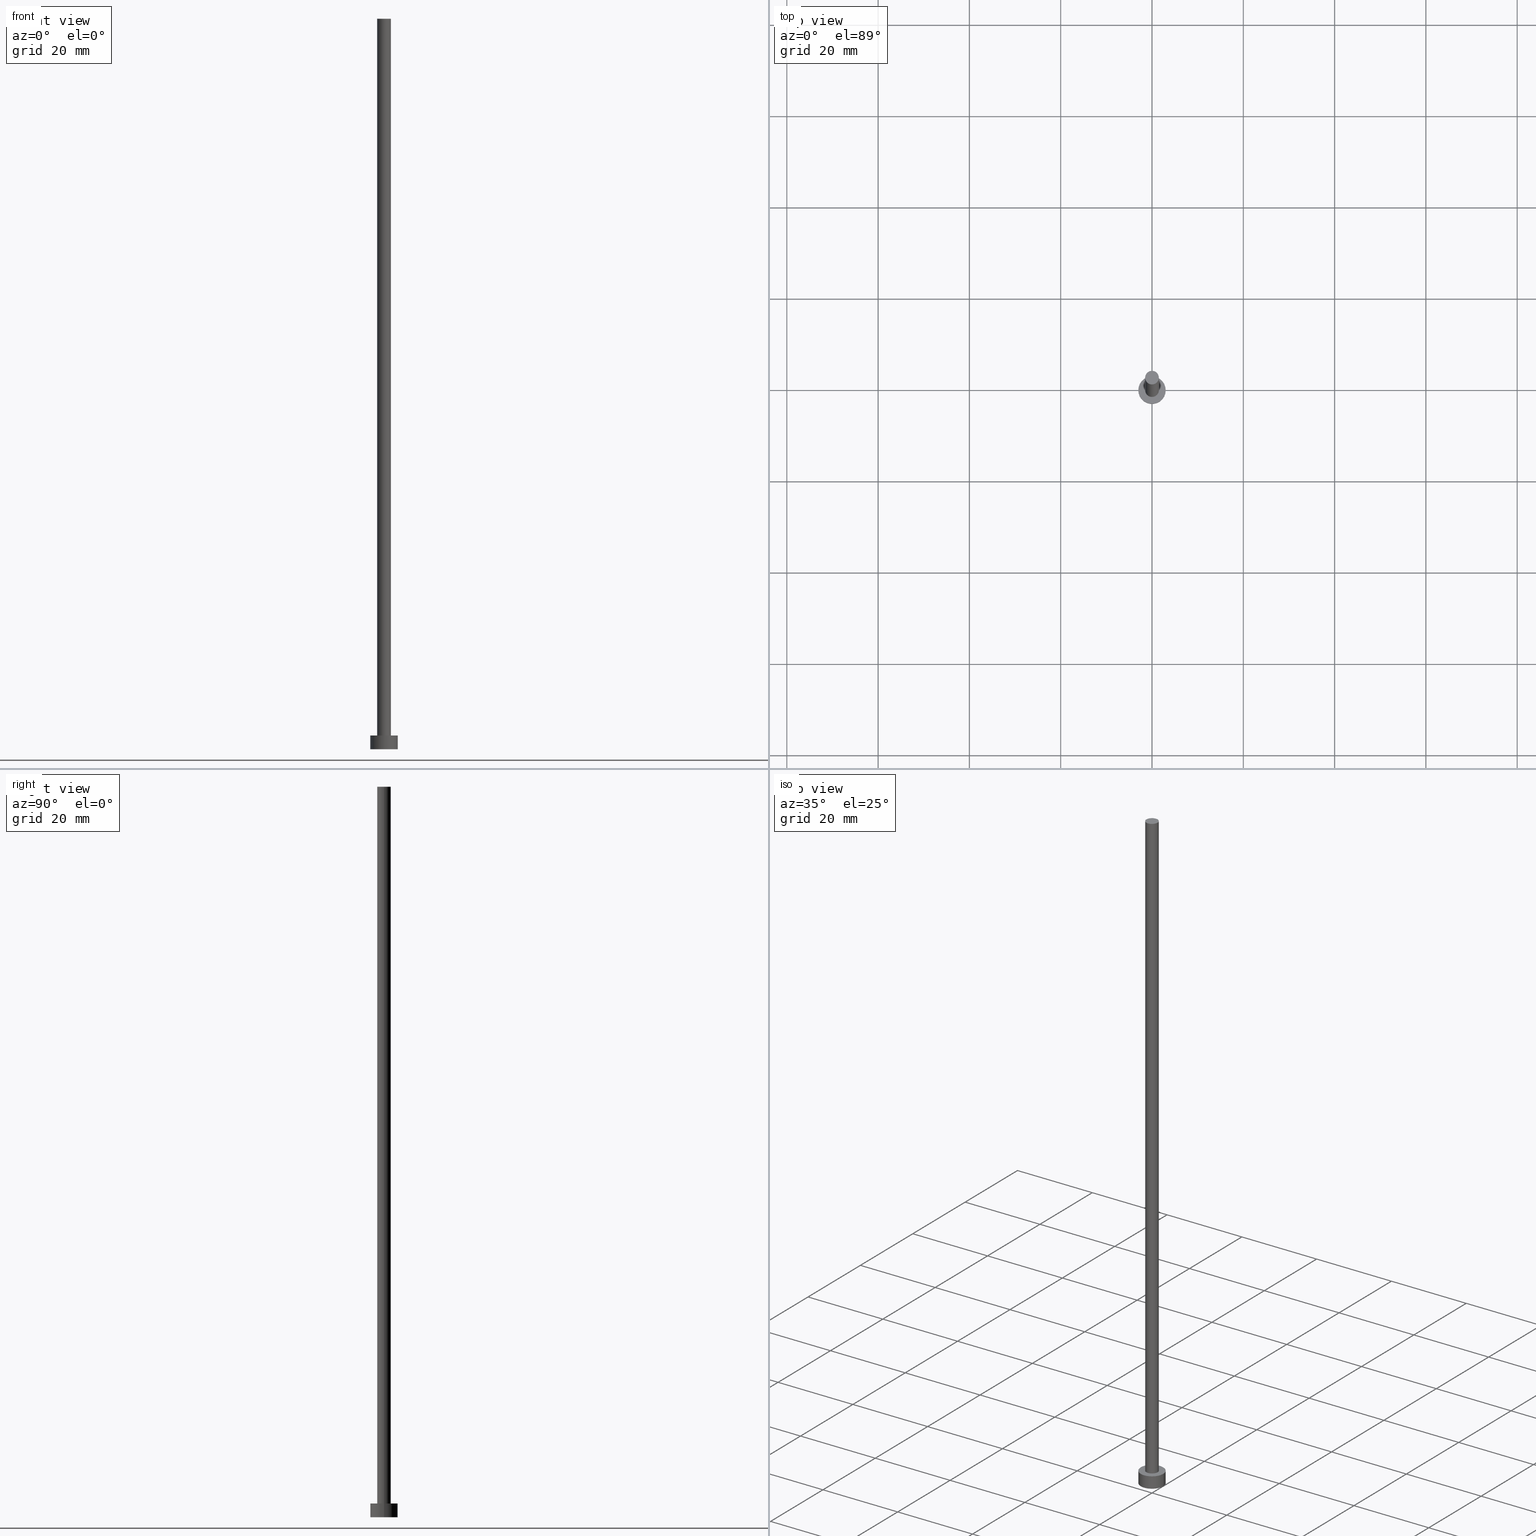
[diagram: canonical four-view strip — front | top / right | iso, engineering-drawing reading convention]
A machine part, canonical four-view strip (front | top / right | iso — engineering-drawing reading convention). The complete STEP part file that produces these views, byte-faithful:
ISO-10303-21;
HEADER;
FILE_DESCRIPTION (( 'STEP AP203' ),
    '1' );
FILE_NAME ('f758.STEP',
    '2023-02-13T14:27:02',
    ( '' ),
    ( '' ),
    'SwSTEP 2.0',
    'SolidWorks 2019',
    '' );
FILE_SCHEMA (( 'CONFIG_CONTROL_DESIGN' ));
ENDSEC;

DATA;
#1 = AXIS2_PLACEMENT_3D ( 'NONE', #147, #209, #152 ) ;
#2 = DIRECTION ( 'NONE',  ( -0.000000000000000000, -0.000000000000000000, -1.000000000000000000 ) ) ;
#3 = LOCAL_TIME ( 15, 27, 2.000000000000000000, #36 ) ;
#4 = CC_DESIGN_APPROVAL ( #140, ( #133 ) ) ;
#5 = EDGE_LOOP ( 'NONE', ( #104, #210, #172, #67 ) ) ;
#6 = APPROVAL ( #83, 'NEUR�EN�' ) ;
#7 = ORIENTED_EDGE ( 'NONE', *, *, #19, .T. ) ;
#8 = ORIENTED_EDGE ( 'NONE', *, *, #232, .T. ) ;
#9 = LOCAL_TIME ( 15, 27, 2.000000000000000000, #163 ) ;
#10 = PRODUCT_DEFINITION_SHAPE ( 'NONE', 'NONE',  #133 ) ;
#11 = DIRECTION ( 'NONE',  ( 1.000000000000000000, 0.000000000000000000, -0.000000000000000000 ) ) ;
#12 = CARTESIAN_POINT ( 'NONE',  ( 0.000000000000000000, 0.000000000000000000, 0.000000000000000000 ) ) ;
#13 = SHAPE_DEFINITION_REPRESENTATION ( #10, #237 ) ;
#14 = APPROVAL_DATE_TIME ( #199, #6 ) ;
#15 = PERSON_AND_ORGANIZATION ( #20, #212 ) ;
#16 = EDGE_LOOP ( 'NONE', ( #154, #65, #42, #213 ) ) ;
#17 = DIRECTION ( 'NONE',  ( 1.000000000000000000, 0.000000000000000000, 0.000000000000000000 ) ) ;
#18 = DIRECTION ( 'NONE',  ( -1.000000000000000000, 0.000000000000000000, 0.000000000000000000 ) ) ;
#19 = EDGE_CURVE ( 'NONE', #100, #214, #215, .T. ) ;
#20 = PERSON ( 'NEUR�EN�', 'NEUR�EN�', 'NEUR�EN�', ('NEUR�EN�'), ('NEUR�EN�'), ('NEUR�EN�') ) ;
#21 = AXIS2_PLACEMENT_3D ( 'NONE', #247, #2, #18 ) ;
#22 = CC_DESIGN_PERSON_AND_ORGANIZATION_ASSIGNMENT ( #32, #253, ( #143 ) ) ;
#23 = AXIS2_PLACEMENT_3D ( 'NONE', #224, #97, #128 ) ;
#24 = LINE ( 'NONE', #244, #25 ) ;
#25 = VECTOR ( 'NONE', #72, 1000.000000000000000 ) ;
#26 = MANIFOLD_SOLID_BREP ( 'P�idat vysunut�m3', #204 ) ;
#27 = FACE_BOUND ( 'NONE', #206, .T. ) ;
#28 = EDGE_CURVE ( 'NONE', #93, #136, #211, .T. ) ;
#29 = CIRCLE ( 'NONE', #126, 1.500000000000000222 ) ;
#30 = DIRECTION ( 'NONE',  ( 0.000000000000000000, 0.000000000000000000, 1.000000000000000000 ) ) ;
#31 = DIRECTION ( 'NONE',  ( 1.000000000000000000, 0.000000000000000000, 0.000000000000000000 ) ) ;
#32 = PERSON_AND_ORGANIZATION ( #20, #212 ) ;
#33 = CIRCLE ( 'NONE', #158, 3.000000000000000444 ) ;
#34 = DESIGN_CONTEXT ( 'detailed design', #138, 'design' ) ;
#35 = DATE_AND_TIME ( #149, #103 ) ;
#36 = COORDINATED_UNIVERSAL_TIME_OFFSET ( 1, 0, .AHEAD. ) ;
#37 = CC_DESIGN_PERSON_AND_ORGANIZATION_ASSIGNMENT ( #59, #57, ( #125 ) ) ;
#38 = CARTESIAN_POINT ( 'NONE',  ( 3.000000000000000444, 3.673940397442060361E-16, 0.000000000000000000 ) ) ;
#39 = DATE_AND_TIME ( #150, #45 ) ;
#40 = APPLICATION_PROTOCOL_DEFINITION ( 'international standard', 'config_control_design', 1994, #50 ) ;
#41 = FACE_OUTER_BOUND ( 'NONE', #5, .T. ) ;
#42 = ORIENTED_EDGE ( 'NONE', *, *, #191, .T. ) ;
#43 = LINE ( 'NONE', #54, #119 ) ;
#44 = DIRECTION ( 'NONE',  ( -0.000000000000000000, -0.000000000000000000, -1.000000000000000000 ) ) ;
#45 = LOCAL_TIME ( 15, 27, 2.000000000000000000, #95 ) ;
#46 = ORIENTED_EDGE ( 'NONE', *, *, #232, .F. ) ;
#47 = CARTESIAN_POINT ( 'NONE',  ( 0.000000000000000000, 0.000000000000000000, 3.000000000000000000 ) ) ;
#48 = EDGE_LOOP ( 'NONE', ( #62, #170 ) ) ;
#49 = FACE_OUTER_BOUND ( 'NONE', #235, .T. ) ;
#50 = APPLICATION_CONTEXT ( 'configuration controlled 3d designs of mechanical parts and assemblies' ) ;
#51 = CARTESIAN_POINT ( 'NONE',  ( 0.000000000000000000, 0.000000000000000000, 3.000000000000000000 ) ) ;
#52 = PLANE ( 'NONE',  #203 ) ;
#53 = AXIS2_PLACEMENT_3D ( 'NONE', #252, #94, #226 ) ;
#54 = CARTESIAN_POINT ( 'NONE',  ( -3.000000000000000444, 0.000000000000000000, 3.000000000000000000 ) ) ;
#55 = CALENDAR_DATE ( 2023, 13, 2 ) ;
#56 = AXIS2_PLACEMENT_3D ( 'NONE', #117, #166, #79 ) ;
#57 = PERSON_AND_ORGANIZATION_ROLE ( 'design_owner' ) ;
#58 = CALENDAR_DATE ( 2023, 13, 2 ) ;
#59 = PERSON_AND_ORGANIZATION ( #20, #212 ) ;
#60 = LINE ( 'NONE', #64, #141 ) ;
#61 = DATE_TIME_ROLE ( 'creation_date' ) ;
#62 = ORIENTED_EDGE ( 'NONE', *, *, #207, .T. ) ;
#63 = APPROVAL_STATUS ( 'not_yet_approved' ) ;
#64 = CARTESIAN_POINT ( 'NONE',  ( 3.000000000000000444, 3.673940397442060361E-16, 3.000000000000000000 ) ) ;
#65 = ORIENTED_EDGE ( 'NONE', *, *, #156, .T. ) ;
#66 = EDGE_CURVE ( 'NONE', #93, #214, #24, .T. ) ;
#67 = ORIENTED_EDGE ( 'NONE', *, *, #112, .T. ) ;
#68 = EDGE_LOOP ( 'NONE', ( #46, #241, #7, #85 ) ) ;
#69 = EDGE_CURVE ( 'NONE', #136, #100, #144, .T. ) ;
#70 = CARTESIAN_POINT ( 'NONE',  ( 1.500000000000000222, 1.836970198721030181E-16, 3.000000000000000000 ) ) ;
#71 = ORIENTED_EDGE ( 'NONE', *, *, #207, .F. ) ;
#72 = DIRECTION ( 'NONE',  ( -0.000000000000000000, -0.000000000000000000, -1.000000000000000000 ) ) ;
#73 = APPROVAL_DATE_TIME ( #91, #140 ) ;
#74 =( NAMED_UNIT ( * ) PLANE_ANGLE_UNIT ( ) SI_UNIT ( $, .RADIAN. ) );
#75 = ADVANCED_FACE ( 'NONE', ( #49 ), #145, .T. ) ;
#76 = DIRECTION ( 'NONE',  ( 1.000000000000000000, 0.000000000000000000, -0.000000000000000000 ) ) ;
#77 = CIRCLE ( 'NONE', #181, 3.000000000000000444 ) ;
#78 = DIRECTION ( 'NONE',  ( 0.000000000000000000, 0.000000000000000000, 1.000000000000000000 ) ) ;
#79 = DIRECTION ( 'NONE',  ( 1.000000000000000000, 0.000000000000000000, 0.000000000000000000 ) ) ;
#80 = CARTESIAN_POINT ( 'NONE',  ( 0.000000000000000000, 0.000000000000000000, 0.000000000000000000 ) ) ;
#81 = ADVANCED_FACE ( 'NONE', ( #105 ), #155, .T. ) ;
#82 = DIRECTION ( 'NONE',  ( 0.000000000000000000, 0.000000000000000000, 1.000000000000000000 ) ) ;
#83 = APPROVAL_STATUS ( 'not_yet_approved' ) ;
#84 = CARTESIAN_POINT ( 'NONE',  ( 1.500000000000000222, 1.836970198721030181E-16, 160.0000000000000000 ) ) ;
#85 = ORIENTED_EDGE ( 'NONE', *, *, #66, .F. ) ;
#86 = CIRCLE ( 'NONE', #217, 3.000000000000000444 ) ;
#87 = CARTESIAN_POINT ( 'NONE',  ( -1.500000000000000222, 0.000000000000000000, 3.000000000000000000 ) ) ;
#88 = ADVANCED_FACE ( 'NONE', ( #27, #146 ), #52, .T. ) ;
#89 = ORIENTED_EDGE ( 'NONE', *, *, #19, .F. ) ;
#90 = VERTEX_POINT ( 'NONE', #107 ) ;
#91 = DATE_AND_TIME ( #231, #9 ) ;
#92 = DIRECTION ( 'NONE',  ( 1.000000000000000000, 0.000000000000000000, 0.000000000000000000 ) ) ;
#93 = VERTEX_POINT ( 'NONE', #240 ) ;
#94 = DIRECTION ( 'NONE',  ( 0.000000000000000000, 0.000000000000000000, 1.000000000000000000 ) ) ;
#95 = COORDINATED_UNIVERSAL_TIME_OFFSET ( 1, 0, .AHEAD. ) ;
#96 = APPROVAL_ROLE ( '' ) ;
#97 = DIRECTION ( 'NONE',  ( -0.000000000000000000, -0.000000000000000000, -1.000000000000000000 ) ) ;
#98 = COORDINATED_UNIVERSAL_TIME_OFFSET ( 1, 0, .AHEAD. ) ;
#99 = DIRECTION ( 'NONE',  ( 1.000000000000000000, 0.000000000000000000, 0.000000000000000000 ) ) ;
#100 = VERTEX_POINT ( 'NONE', #70 ) ;
#101 = VECTOR ( 'NONE', #218, 1000.000000000000000 ) ;
#102 = ORIENTED_EDGE ( 'NONE', *, *, #28, .T. ) ;
#103 = LOCAL_TIME ( 15, 27, 2.000000000000000000, #98 ) ;
#104 = ORIENTED_EDGE ( 'NONE', *, *, #69, .F. ) ;
#105 = FACE_OUTER_BOUND ( 'NONE', #16, .T. ) ;
#106 = DIRECTION ( 'NONE',  ( 1.000000000000000000, 0.000000000000000000, 0.000000000000000000 ) ) ;
#107 = CARTESIAN_POINT ( 'NONE',  ( 3.000000000000000444, 3.673940397442060361E-16, 3.000000000000000000 ) ) ;
#108 = FACE_OUTER_BOUND ( 'NONE', #116, .T. ) ;
#109 = APPROVAL_ROLE ( '' ) ;
#110 = AXIS2_PLACEMENT_3D ( 'NONE', #139, #168, #17 ) ;
#111 = APPROVAL_PERSON_ORGANIZATION ( #182, #242, #227 ) ;
#112 = EDGE_CURVE ( 'NONE', #214, #100, #113, .T. ) ;
#113 = CIRCLE ( 'NONE', #110, 1.500000000000000222 ) ;
#114 = AXIS2_PLACEMENT_3D ( 'NONE', #80, #200, #183 ) ;
#115 = CC_DESIGN_PERSON_AND_ORGANIZATION_ASSIGNMENT ( #151, #135, ( #175 ) ) ;
#116 = EDGE_LOOP ( 'NONE', ( #192, #190 ) ) ;
#117 = CARTESIAN_POINT ( 'NONE',  ( 0.000000000000000000, 0.000000000000000000, 3.000000000000000000 ) ) ;
#118 = CARTESIAN_POINT ( 'NONE',  ( -3.000000000000000444, 0.000000000000000000, 0.000000000000000000 ) ) ;
#119 = VECTOR ( 'NONE', #134, 1000.000000000000000 ) ;
#120 = CC_DESIGN_SECURITY_CLASSIFICATION ( #143, ( #175 ) ) ;
#121 =( LENGTH_UNIT ( ) NAMED_UNIT ( * ) SI_UNIT ( .MILLI., .METRE. ) );
#122 = DIRECTION ( 'NONE',  ( 0.000000000000000000, 0.000000000000000000, 1.000000000000000000 ) ) ;
#123 = DIRECTION ( 'NONE',  ( -0.000000000000000000, -0.000000000000000000, -1.000000000000000000 ) ) ;
#124 = PRODUCT_RELATED_PRODUCT_CATEGORY ( 'detail', '', ( #125 ) ) ;
#125 = PRODUCT ( 'f758', 'f758', '', ( #254 ) ) ;
#126 = AXIS2_PLACEMENT_3D ( 'NONE', #195, #164, #31 ) ;
#127 = CARTESIAN_POINT ( 'NONE',  ( 0.000000000000000000, 0.000000000000000000, 3.000000000000000000 ) ) ;
#128 = DIRECTION ( 'NONE',  ( -1.000000000000000000, 0.000000000000000000, 0.000000000000000000 ) ) ;
#129 = PERSON_AND_ORGANIZATION ( #20, #212 ) ;
#130 = AXIS2_PLACEMENT_3D ( 'NONE', #47, #174, #106 ) ;
#131 = ADVANCED_FACE ( 'NONE', ( #41 ), #160, .T. ) ;
#132 = PERSON_AND_ORGANIZATION ( #20, #212 ) ;
#133 = PRODUCT_DEFINITION ( 'NEZN�M�', '', #175, #34 ) ;
#134 = DIRECTION ( 'NONE',  ( -0.000000000000000000, -0.000000000000000000, -1.000000000000000000 ) ) ;
#135 = PERSON_AND_ORGANIZATION_ROLE ( 'creator' ) ;
#136 = VERTEX_POINT ( 'NONE', #84 ) ;
#137 = DIRECTION ( 'NONE',  ( 0.000000000000000000, 0.000000000000000000, 1.000000000000000000 ) ) ;
#138 = APPLICATION_CONTEXT ( 'configuration controlled 3d designs of mechanical parts and assemblies' ) ;
#139 = CARTESIAN_POINT ( 'NONE',  ( 0.000000000000000000, 0.000000000000000000, 3.000000000000000000 ) ) ;
#140 = APPROVAL ( #63, 'NEUR�EN�' ) ;
#141 = VECTOR ( 'NONE', #44, 1000.000000000000000 ) ;
#142 = ORIENTED_EDGE ( 'NONE', *, *, #156, .F. ) ;
#143 = SECURITY_CLASSIFICATION ( '', '', #230 ) ;
#144 = LINE ( 'NONE', #220, #101 ) ;
#145 = PLANE ( 'NONE',  #238 ) ;
#146 = FACE_OUTER_BOUND ( 'NONE', #48, .T. ) ;
#147 = CARTESIAN_POINT ( 'NONE',  ( 0.000000000000000000, 0.000000000000000000, 160.0000000000000000 ) ) ;
#148 = ADVANCED_FACE ( 'NONE', ( #233 ), #229, .T. ) ;
#149 = CALENDAR_DATE ( 2023, 13, 2 ) ;
#150 = CALENDAR_DATE ( 2023, 13, 2 ) ;
#151 = PERSON_AND_ORGANIZATION ( #20, #212 ) ;
#152 = DIRECTION ( 'NONE',  ( -1.000000000000000000, 0.000000000000000000, 0.000000000000000000 ) ) ;
#153 = FACE_OUTER_BOUND ( 'NONE', #186, .T. ) ;
#154 = ORIENTED_EDGE ( 'NONE', *, *, #222, .F. ) ;
#155 = CYLINDRICAL_SURFACE ( 'NONE', #219, 3.000000000000000444 ) ;
#156 = EDGE_CURVE ( 'NONE', #90, #167, #60, .T. ) ;
#157 = ORIENTED_EDGE ( 'NONE', *, *, #198, .T. ) ;
#158 = AXIS2_PLACEMENT_3D ( 'NONE', #188, #137, #159 ) ;
#159 = DIRECTION ( 'NONE',  ( 1.000000000000000000, 0.000000000000000000, 0.000000000000000000 ) ) ;
#160 = CYLINDRICAL_SURFACE ( 'NONE', #21, 1.500000000000000222 ) ;
#161 = CC_DESIGN_PERSON_AND_ORGANIZATION_ASSIGNMENT ( #221, #162, ( #133 ) ) ;
#162 = PERSON_AND_ORGANIZATION_ROLE ( 'creator' ) ;
#163 = COORDINATED_UNIVERSAL_TIME_OFFSET ( 1, 0, .AHEAD. ) ;
#164 = DIRECTION ( 'NONE',  ( 0.000000000000000000, 0.000000000000000000, 1.000000000000000000 ) ) ;
#165 = APPROVAL_STATUS ( 'not_yet_approved' ) ;
#166 = DIRECTION ( 'NONE',  ( 0.000000000000000000, 0.000000000000000000, 1.000000000000000000 ) ) ;
#167 = VERTEX_POINT ( 'NONE', #38 ) ;
#168 = DIRECTION ( 'NONE',  ( 0.000000000000000000, 0.000000000000000000, 1.000000000000000000 ) ) ;
#169 = VERTEX_POINT ( 'NONE', #118 ) ;
#170 = ORIENTED_EDGE ( 'NONE', *, *, #222, .T. ) ;
#171 = EDGE_CURVE ( 'NONE', #169, #167, #33, .T. ) ;
#172 = ORIENTED_EDGE ( 'NONE', *, *, #66, .T. ) ;
#173 = ORIENTED_EDGE ( 'NONE', *, *, #171, .T. ) ;
#174 = DIRECTION ( 'NONE',  ( 0.000000000000000000, 0.000000000000000000, 1.000000000000000000 ) ) ;
#175 = PRODUCT_DEFINITION_FORMATION_WITH_SPECIFIED_SOURCE ( 'LIBOVOLN�', '', #125, .NOT_KNOWN. ) ;
#176 = ORIENTED_EDGE ( 'NONE', *, *, #112, .F. ) ;
#177 = CARTESIAN_POINT ( 'NONE',  ( 0.000000000000000000, 0.000000000000000000, 160.0000000000000000 ) ) ;
#178 = PLANE ( 'NONE',  #53 ) ;
#179 = COORDINATED_UNIVERSAL_TIME_OFFSET ( 1, 0, .AHEAD. ) ;
#180 = CC_DESIGN_PERSON_AND_ORGANIZATION_ASSIGNMENT ( #132, #197, ( #175 ) ) ;
#181 = AXIS2_PLACEMENT_3D ( 'NONE', #12, #82, #99 ) ;
#182 = PERSON_AND_ORGANIZATION ( #20, #212 ) ;
#183 = DIRECTION ( 'NONE',  ( 1.000000000000000000, 0.000000000000000000, 0.000000000000000000 ) ) ;
#184 = APPLICATION_PROTOCOL_DEFINITION ( 'international standard', 'config_control_design', 1994, #138 ) ;
#185 = APPROVAL_PERSON_ORGANIZATION ( #15, #140, #96 ) ;
#186 = EDGE_LOOP ( 'NONE', ( #142, #71, #157, #173 ) ) ;
#187 =( NAMED_UNIT ( * ) SI_UNIT ( $, .STERADIAN. ) SOLID_ANGLE_UNIT ( ) );
#188 = CARTESIAN_POINT ( 'NONE',  ( 0.000000000000000000, 0.000000000000000000, 0.000000000000000000 ) ) ;
#189 = CC_DESIGN_DATE_AND_TIME_ASSIGNMENT ( #39, #61, ( #133 ) ) ;
#190 = ORIENTED_EDGE ( 'NONE', *, *, #191, .F. ) ;
#191 = EDGE_CURVE ( 'NONE', #167, #169, #77, .T. ) ;
#192 = ORIENTED_EDGE ( 'NONE', *, *, #171, .F. ) ;
#193 = DIRECTION ( 'NONE',  ( -1.000000000000000000, 0.000000000000000000, 0.000000000000000000 ) ) ;
#194 = CC_DESIGN_DATE_AND_TIME_ASSIGNMENT ( #35, #251, ( #143 ) ) ;
#195 = CARTESIAN_POINT ( 'NONE',  ( 0.000000000000000000, 0.000000000000000000, 160.0000000000000000 ) ) ;
#196 = APPROVAL_PERSON_ORGANIZATION ( #129, #6, #109 ) ;
#197 = PERSON_AND_ORGANIZATION_ROLE ( 'design_supplier' ) ;
#198 = EDGE_CURVE ( 'NONE', #239, #169, #43, .T. ) ;
#199 = DATE_AND_TIME ( #58, #246 ) ;
#200 = DIRECTION ( 'NONE',  ( 0.000000000000000000, 0.000000000000000000, 1.000000000000000000 ) ) ;
#201 = CARTESIAN_POINT ( 'NONE',  ( 0.000000000000000000, 0.000000000000000000, 3.000000000000000000 ) ) ;
#202 = APPROVAL_DATE_TIME ( #248, #242 ) ;
#203 = AXIS2_PLACEMENT_3D ( 'NONE', #127, #30, #11 ) ;
#204 = CLOSED_SHELL ( 'NONE', ( #148, #81, #228, #88, #249, #131, #75 ) ) ;
#205 = CC_DESIGN_APPROVAL ( #242, ( #175 ) ) ;
#206 = EDGE_LOOP ( 'NONE', ( #176, #89 ) ) ;
#207 = EDGE_CURVE ( 'NONE', #239, #90, #243, .T. ) ;
#208 = DIRECTION ( 'NONE',  ( 1.000000000000000000, 0.000000000000000000, 0.000000000000000000 ) ) ;
#209 = DIRECTION ( 'NONE',  ( -0.000000000000000000, -0.000000000000000000, -1.000000000000000000 ) ) ;
#210 = ORIENTED_EDGE ( 'NONE', *, *, #28, .F. ) ;
#211 = CIRCLE ( 'NONE', #250, 1.500000000000000222 ) ;
#212 = ORGANIZATION ( 'NEUR�EN�', 'NEUR�EN�', '' ) ;
#213 = ORIENTED_EDGE ( 'NONE', *, *, #198, .F. ) ;
#214 = VERTEX_POINT ( 'NONE', #87 ) ;
#215 = CIRCLE ( 'NONE', #130, 1.500000000000000222 ) ;
#216 = DIRECTION ( 'NONE',  ( 0.000000000000000000, 0.000000000000000000, 1.000000000000000000 ) ) ;
#217 = AXIS2_PLACEMENT_3D ( 'NONE', #201, #78, #208 ) ;
#218 = DIRECTION ( 'NONE',  ( -0.000000000000000000, -0.000000000000000000, -1.000000000000000000 ) ) ;
#219 = AXIS2_PLACEMENT_3D ( 'NONE', #51, #123, #193 ) ;
#220 = CARTESIAN_POINT ( 'NONE',  ( 1.500000000000000222, 1.836970198721030181E-16, 160.0000000000000000 ) ) ;
#221 = PERSON_AND_ORGANIZATION ( #20, #212 ) ;
#222 = EDGE_CURVE ( 'NONE', #90, #239, #86, .T. ) ;
#223 =( GEOMETRIC_REPRESENTATION_CONTEXT ( 3 ) GLOBAL_UNCERTAINTY_ASSIGNED_CONTEXT ( ( #225 ) ) GLOBAL_UNIT_ASSIGNED_CONTEXT ( ( #121, #74, #187 ) ) REPRESENTATION_CONTEXT ( 'NONE', 'WORKASPACE' ) );
#224 = CARTESIAN_POINT ( 'NONE',  ( 0.000000000000000000, 0.000000000000000000, 3.000000000000000000 ) ) ;
#225 = UNCERTAINTY_MEASURE_WITH_UNIT (LENGTH_MEASURE( 1.000000000000000082E-05 ), #121, 'distance_accuracy_value', 'NONE');
#226 = DIRECTION ( 'NONE',  ( 1.000000000000000000, 0.000000000000000000, -0.000000000000000000 ) ) ;
#227 = APPROVAL_ROLE ( '' ) ;
#228 = ADVANCED_FACE ( 'NONE', ( #153 ), #236, .T. ) ;
#229 = CYLINDRICAL_SURFACE ( 'NONE', #1, 1.500000000000000222 ) ;
#230 = SECURITY_CLASSIFICATION_LEVEL ( 'unclassified' ) ;
#231 = CALENDAR_DATE ( 2023, 13, 2 ) ;
#232 = EDGE_CURVE ( 'NONE', #136, #93, #29, .T. ) ;
#233 = FACE_OUTER_BOUND ( 'NONE', #68, .T. ) ;
#234 = CC_DESIGN_APPROVAL ( #6, ( #143 ) ) ;
#235 = EDGE_LOOP ( 'NONE', ( #102, #8 ) ) ;
#236 = CYLINDRICAL_SURFACE ( 'NONE', #23, 3.000000000000000444 ) ;
#237 = ADVANCED_BREP_SHAPE_REPRESENTATION ( 'f758', ( #26, #114 ), #223 ) ;
#238 = AXIS2_PLACEMENT_3D ( 'NONE', #245, #122, #76 ) ;
#239 = VERTEX_POINT ( 'NONE', #255 ) ;
#240 = CARTESIAN_POINT ( 'NONE',  ( -1.500000000000000222, 0.000000000000000000, 160.0000000000000000 ) ) ;
#241 = ORIENTED_EDGE ( 'NONE', *, *, #69, .T. ) ;
#242 = APPROVAL ( #165, 'NEUR�EN�' ) ;
#243 = CIRCLE ( 'NONE', #56, 3.000000000000000444 ) ;
#244 = CARTESIAN_POINT ( 'NONE',  ( -1.500000000000000222, 0.000000000000000000, 160.0000000000000000 ) ) ;
#245 = CARTESIAN_POINT ( 'NONE',  ( 0.000000000000000000, 0.000000000000000000, 160.0000000000000000 ) ) ;
#246 = LOCAL_TIME ( 15, 27, 2.000000000000000000, #179 ) ;
#247 = CARTESIAN_POINT ( 'NONE',  ( 0.000000000000000000, 0.000000000000000000, 160.0000000000000000 ) ) ;
#248 = DATE_AND_TIME ( #55, #3 ) ;
#249 = ADVANCED_FACE ( 'NONE', ( #108 ), #178, .F. ) ;
#250 = AXIS2_PLACEMENT_3D ( 'NONE', #177, #216, #92 ) ;
#251 = DATE_TIME_ROLE ( 'classification_date' ) ;
#252 = CARTESIAN_POINT ( 'NONE',  ( 0.000000000000000000, 0.000000000000000000, 0.000000000000000000 ) ) ;
#253 = PERSON_AND_ORGANIZATION_ROLE ( 'classification_officer' ) ;
#254 = MECHANICAL_CONTEXT ( 'NONE', #50, 'mechanical' ) ;
#255 = CARTESIAN_POINT ( 'NONE',  ( -3.000000000000000444, 0.000000000000000000, 3.000000000000000000 ) ) ;
ENDSEC;
END-ISO-10303-21;
